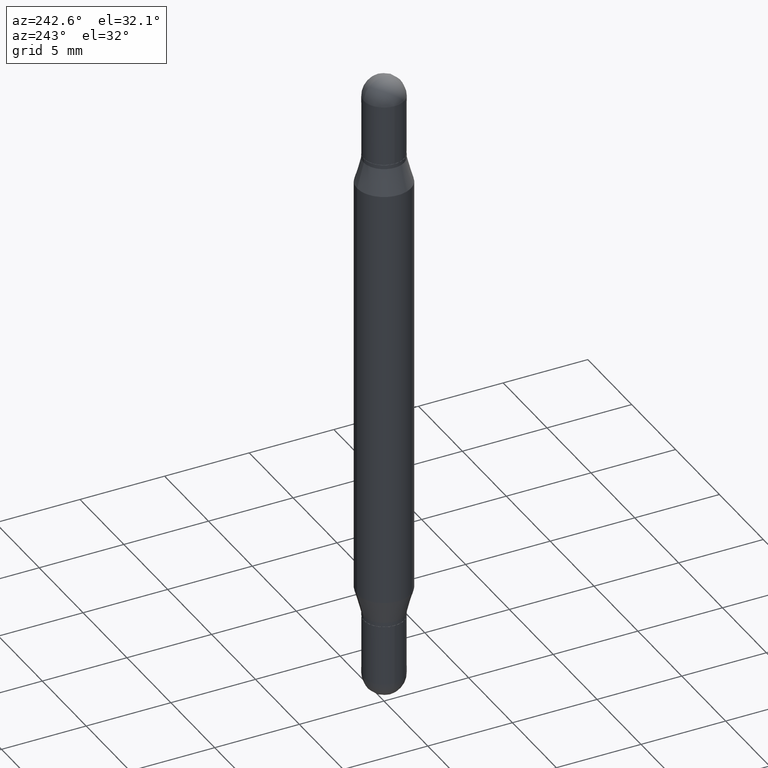
[diagram: clean part render]
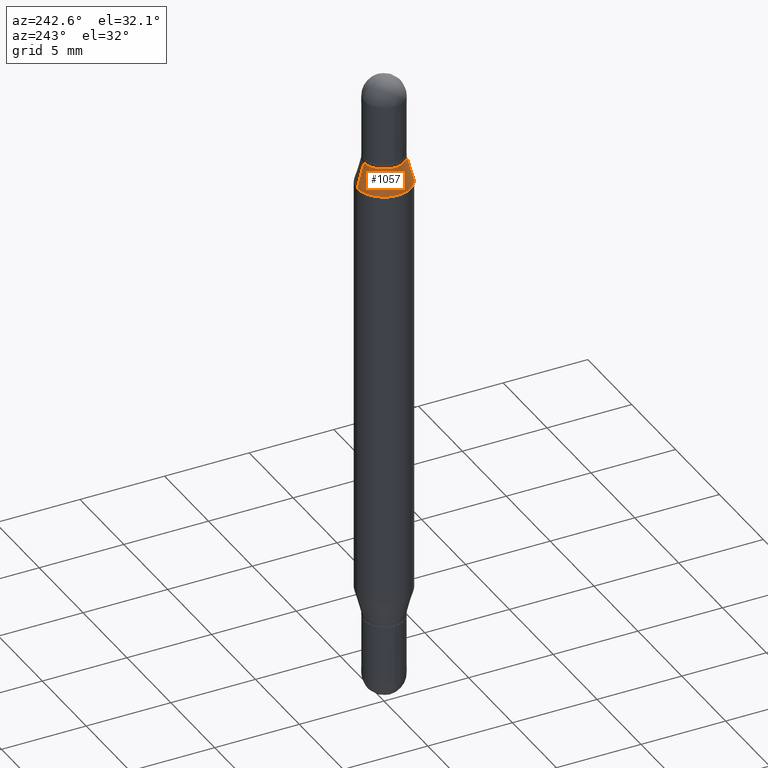
[diagram: same view with one face highlighted and labeled with its STEP entity id]
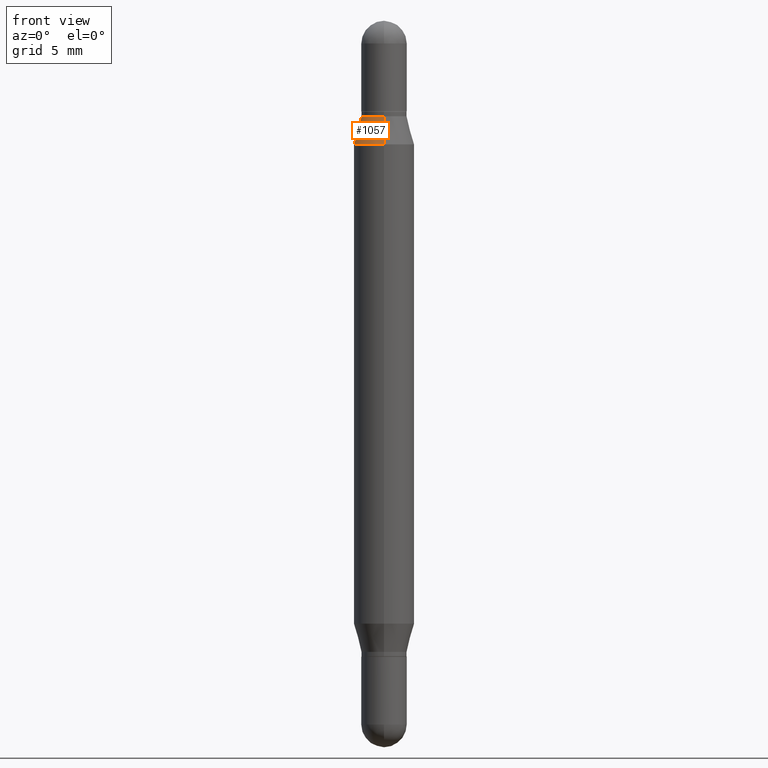
[diagram: same view with one face highlighted and labeled with its STEP entity id]
A machine part, auxiliary view. The second image highlights one B-rep face of the part: STEP entity #1057.
A second angle (front view) of the same face is appended — the face is thin or edge-on in the first view.
In plain terms, the highlighted conical surface has half-angle 15 deg.
Its self-contained STEP definition (entity closure, byte-faithful):
#30 = FACE_OUTER_BOUND ( 'NONE', #291, .T. ) ;
#51 = DIRECTION ( 'NONE',  ( -1.807323732225336450E-15, -0.2588190451025258465, -0.9659258262890669799 ) ) ;
#99 = VECTOR ( 'NONE', #51, 39.37007874015748143 ) ;
#111 = AXIS2_PLACEMENT_3D ( 'NONE', #631, #975, #465 ) ;
#112 = VERTEX_POINT ( 'NONE', #836 ) ;
#124 = ORIENTED_EDGE ( 'NONE', *, *, #792, .T. ) ;
#199 = VERTEX_POINT ( 'NONE', #349 ) ;
#247 = DIRECTION ( 'NONE',  ( 1.775627540710971216E-15, 0.2588190451025190741, -0.9659258262890687563 ) ) ;
#291 = EDGE_LOOP ( 'NONE', ( #893, #778, #124, #500 ) ) ;
#301 = CARTESIAN_POINT ( 'NONE',  ( -3.275009495834514884E-16, -0.04690000000000033031, -0.1969999999999999529 ) ) ;
#334 = VERTEX_POINT ( 'NONE', #962 ) ;
#341 = DIRECTION ( 'NONE',  ( -6.982962677686265133E-15, -1.000000000000000000, 3.640522379616583431E-15 ) ) ;
#349 = CARTESIAN_POINT ( 'NONE',  ( 4.287811248607510938E-16, 0.06249999999999910488, -0.2552199925980757067 ) ) ;
#354 = CIRCLE ( 'NONE', #1068, 0.06250000000000000000 ) ;
#385 = VECTOR ( 'NONE', #247, 39.37007874015748143 ) ;
#431 = VERTEX_POINT ( 'NONE', #301 ) ;
#465 = DIRECTION ( 'NONE',  ( -6.982962677686265133E-15, -1.000000000000000000, 3.640522379616583431E-15 ) ) ;
#472 = CONICAL_SURFACE ( 'NONE', #111, 0.04689999999999964336, 0.2617993877991511842 ) ;
#500 = ORIENTED_EDGE ( 'NONE', *, *, #943, .F. ) ;
#560 = EDGE_CURVE ( 'NONE', #334, #431, #1016, .T. ) ;
#563 = LINE ( 'NONE', #890, #99 ) ;
#631 = CARTESIAN_POINT ( 'NONE',  ( 3.186473100597242815E-29, -6.943451858732379717E-16, -0.1970000000000001195 ) ) ;
#661 = CARTESIAN_POINT ( 'NONE',  ( 3.186473100597242815E-29, -6.943451858732379717E-16, -0.1970000000000001195 ) ) ;
#698 = CARTESIAN_POINT ( 'NONE',  ( 3.044096707404043958E-29, -8.969300577684643069E-16, -0.2552199925980755402 ) ) ;
#735 = EDGE_CURVE ( 'NONE', #334, #199, #1106, .T. ) ;
#778 = ORIENTED_EDGE ( 'NONE', *, *, #735, .T. ) ;
#792 = EDGE_CURVE ( 'NONE', #199, #112, #354, .T. ) ;
#836 = CARTESIAN_POINT ( 'NONE',  ( -4.364351673553612490E-16, -0.06250000000000090206, -0.2552199925980753181 ) ) ;
#868 = DIRECTION ( 'NONE',  ( 2.445489716498267051E-29, 3.479644411736372261E-15, 1.000000000000000000 ) ) ;
#890 = CARTESIAN_POINT ( 'NONE',  ( -3.275009495834514884E-16, -0.04690000000000033031, -0.1969999999999999529 ) ) ;
#893 = ORIENTED_EDGE ( 'NONE', *, *, #560, .F. ) ;
#932 = CARTESIAN_POINT ( 'NONE',  ( 3.217573560955141730E-16, 0.04689999999999894947, -0.1970000000000002860 ) ) ;
#941 = AXIS2_PLACEMENT_3D ( 'NONE', #661, #1025, #341 ) ;
#943 = EDGE_CURVE ( 'NONE', #431, #112, #563, .T. ) ;
#962 = CARTESIAN_POINT ( 'NONE',  ( 3.217573560955143209E-16, 0.04689999999999894947, -0.1970000000000002860 ) ) ;
#975 = DIRECTION ( 'NONE',  ( -2.445489716498267051E-29, -3.479644411736372261E-15, -1.000000000000000000 ) ) ;
#1016 = CIRCLE ( 'NONE', #941, 0.04689999999999964336 ) ;
#1025 = DIRECTION ( 'NONE',  ( 2.445489716498267051E-29, 3.479644411736372261E-15, 1.000000000000000000 ) ) ;
#1042 = DIRECTION ( 'NONE',  ( -6.982962677686265922E-15, -1.000000000000000000, 3.278217592397115862E-15 ) ) ;
#1057 = ADVANCED_FACE ( 'NONE', ( #30 ), #472, .T. ) ;
#1068 = AXIS2_PLACEMENT_3D ( 'NONE', #698, #868, #1042 ) ;
#1106 = LINE ( 'NONE', #932, #385 ) ;